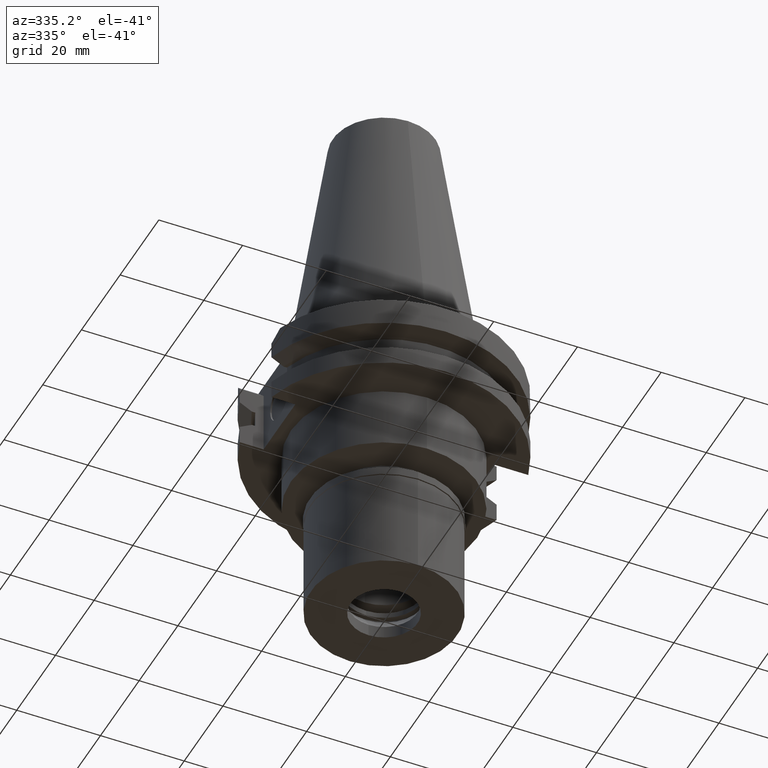
[diagram: clean part render]
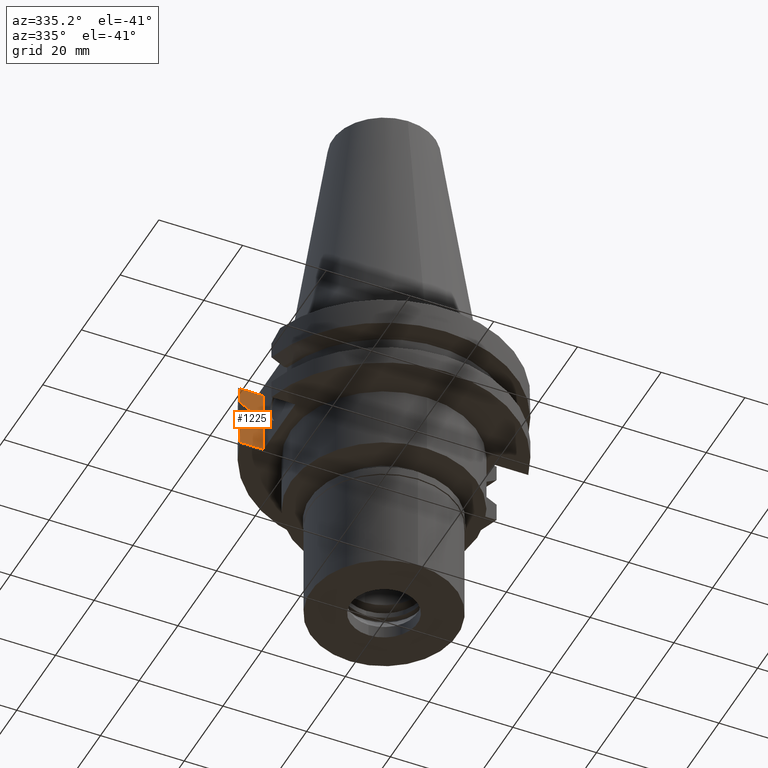
[diagram: same view with one face highlighted and labeled with its STEP entity id]
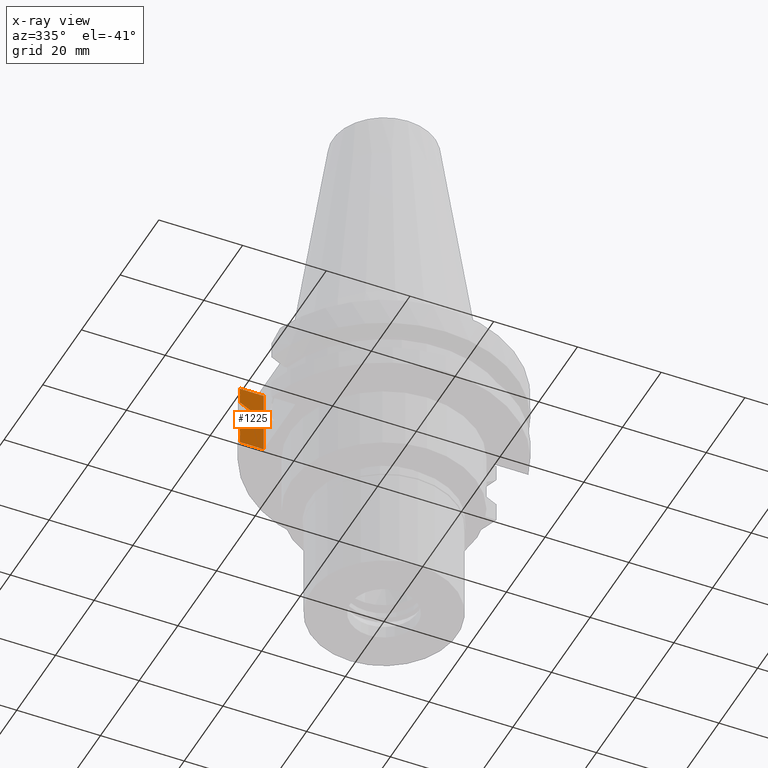
[diagram: x-ray of the same camera — body ghosted, the highlighted face saturated]
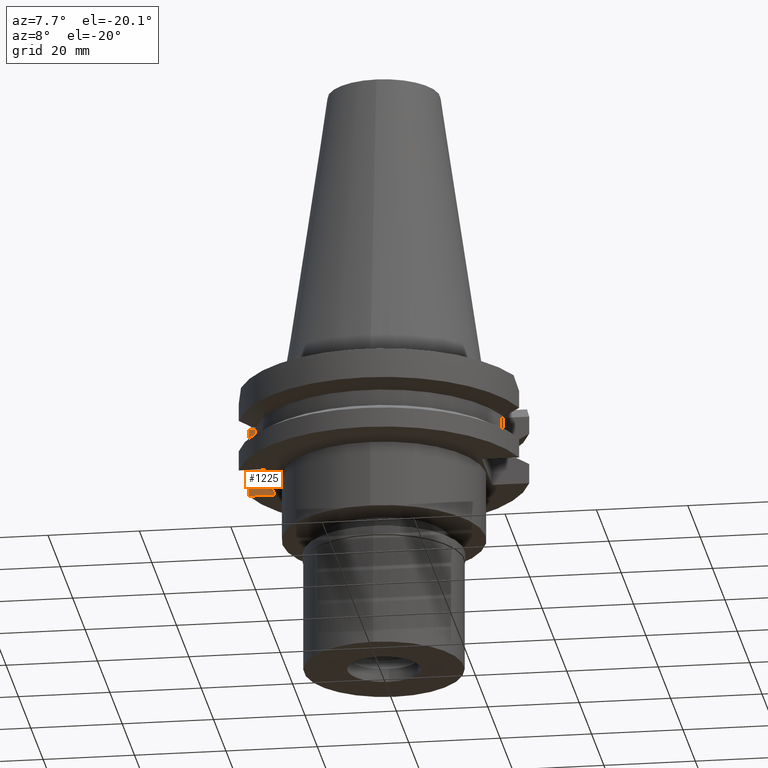
[diagram: same view with one face highlighted and labeled with its STEP entity id]
A machine part, auxiliary view. The second image highlights one B-rep face of the part: STEP entity #1225.
The next image is the same camera in x-ray: the body ghosted, the highlighted face saturated — about 0% of this face is hidden behind the body in this view.
A second angle (auxiliary view) of the same face is appended — the face is thin or edge-on in the first view.
In plain terms, the highlighted planar face has unit normal (0, 1, 0).
Its self-contained STEP definition (entity closure, byte-faithful):
#29 = CARTESIAN_POINT ( 'NONE',  ( -24.98000000000000043, 8.189999999999999503, -3.700000000000000178 ) ) ;
#34 = VECTOR ( 'NONE', #1841, 1000.000000000000114 ) ;
#68 = CARTESIAN_POINT ( 'NONE',  ( -27.78617712593000277, 8.189999354991000402, -9.207500000000999663 ) ) ;
#122 = CARTESIAN_POINT ( 'NONE',  ( -27.78617712540000184, 8.189999355013000581, -13.04749999999999943 ) ) ;
#196 = CARTESIAN_POINT ( 'NONE',  ( -27.78617712593000277, 8.189999354991000402, -9.207500000000999663 ) ) ;
#200 = DIRECTION ( 'NONE',  ( 0.0000000000000000000, 0.0000000000000000000, -1.000000000000000000 ) ) ;
#244 = CARTESIAN_POINT ( 'NONE',  ( -27.78617712540000184, 8.189999355013000581, -13.04749999999999943 ) ) ;
#284 = VERTEX_POINT ( 'NONE', #2751 ) ;
#299 = CARTESIAN_POINT ( 'NONE',  ( -30.67550162588999640, 8.189999999999999503, -19.05000000000000071 ) ) ;
#331 = FACE_OUTER_BOUND ( 'NONE', #2786, .T. ) ;
#371 = CARTESIAN_POINT ( 'NONE',  ( -30.67550162588999640, 8.189999999999999503, -3.700000000000000178 ) ) ;
#395 = CARTESIAN_POINT ( 'NONE',  ( -30.67550162588999640, 8.190000000000997815, -14.65366676908000088 ) ) ;
#419 = CARTESIAN_POINT ( 'NONE',  ( -30.67550166027999836, 8.189999871196000925, -7.601334381923999572 ) ) ;
#454 = DIRECTION ( 'NONE',  ( 1.000000000000000000, 0.0000000000000000000, 0.0000000000000000000 ) ) ;
#480 = CARTESIAN_POINT ( 'NONE',  ( -26.96361066326000255, 8.189999999999999503, -13.04749999999999943 ) ) ;
#537 = EDGE_CURVE ( 'NONE', #1629, #837, #1192, .T. ) ;
#540 = CARTESIAN_POINT ( 'NONE',  ( -30.67550166027999836, 8.189999871196000925, -7.601334381923999572 ) ) ;
#574 = VECTOR ( 'NONE', #2556, 1000.000000000000000 ) ;
#721 = CARTESIAN_POINT ( 'NONE',  ( -30.67550162588999640, 8.190000000000997815, -14.65366676908000088 ) ) ;
#786 = VECTOR ( 'NONE', #2436, 1000.000000000000000 ) ;
#812 = ORIENTED_EDGE ( 'NONE', *, *, #537, .T. ) ;
#815 = EDGE_CURVE ( 'NONE', #284, #2611, #1625, .T. ) ;
#837 = VERTEX_POINT ( 'NONE', #244 ) ;
#847 = EDGE_CURVE ( 'NONE', #2611, #2391, #1373, .T. ) ;
#890 = ORIENTED_EDGE ( 'NONE', *, *, #847, .F. ) ;
#908 = CARTESIAN_POINT ( 'NONE',  ( -28.73056052340999855, 8.190000283830000782, -8.684028978076000271 ) ) ;
#981 = DIRECTION ( 'NONE',  ( -0.9999999999996925792, -7.841158561564943783E-07, 4.124702038574971843E-13 ) ) ;
#1104 = CARTESIAN_POINT ( 'NONE',  ( -30.67550166027999836, 8.189999871200001280, -14.65366561806999890 ) ) ;
#1192 = LINE ( 'NONE', #480, #1655 ) ;
#1194 = LINE ( 'NONE', #2135, #34 ) ;
#1212 = EDGE_CURVE ( 'NONE', #284, #2920, #2495, .T. ) ;
#1225 = ADVANCED_FACE ( 'NONE', ( #331 ), #3032, .F. ) ;
#1244 = EDGE_CURVE ( 'NONE', #2537, #3052, #1295, .T. ) ;
#1295 = LINE ( 'NONE', #1104, #2447 ) ;
#1340 = DIRECTION ( 'NONE',  ( -0.0000000000000000000, 1.000000000000000000, 0.0000000000000000000 ) ) ;
#1344 = LINE ( 'NONE', #1594, #574 ) ;
#1373 = LINE ( 'NONE', #2157, #1701 ) ;
#1394 = EDGE_CURVE ( 'NONE', #2698, #2885, #1194, .T. ) ;
#1400 = ORIENTED_EDGE ( 'NONE', *, *, #1212, .T. ) ;
#1428 = CARTESIAN_POINT ( 'NONE',  ( -30.34643496572000032, 8.189999871196000925, -7.784891506808000017 ) ) ;
#1475 = LINE ( 'NONE', #2190, #786 ) ;
#1537 = VECTOR ( 'NONE', #3021, 1000.000000000000114 ) ;
#1585 = B_SPLINE_CURVE_WITH_KNOTS ( 'NONE', 3,
 ( #721, #1687, #1805, #122 ),
 .UNSPECIFIED., .F., .F.,
 ( 4, 4 ),
 ( 0.0000000000000000000, 1.000000000000000000 ),
 .UNSPECIFIED. ) ;
#1594 = CARTESIAN_POINT ( 'NONE',  ( -24.98000000000000043, 8.189999999999999503, -19.05000000000000071 ) ) ;
#1625 = LINE ( 'NONE', #1678, #1901 ) ;
#1629 = VERTEX_POINT ( 'NONE', #1838 ) ;
#1655 = VECTOR ( 'NONE', #981, 1000.000000000000114 ) ;
#1678 = CARTESIAN_POINT ( 'NONE',  ( -30.67550162588999640, 8.189999999999999503, -3.700000000000000178 ) ) ;
#1687 = CARTESIAN_POINT ( 'NONE',  ( -29.66936063103016608, 8.189999742493125012, -14.09242990279802932 ) ) ;
#1701 = VECTOR ( 'NONE', #200, 1000.000000000000000 ) ;
#1741 = AXIS2_PLACEMENT_3D ( 'NONE', #2284, #1340, #1810 ) ;
#1764 = ORIENTED_EDGE ( 'NONE', *, *, #815, .F. ) ;
#1805 = CARTESIAN_POINT ( 'NONE',  ( -28.70626002247515274, 8.189998708598336563, -13.55704239397416089 ) ) ;
#1810 = DIRECTION ( 'NONE',  ( 1.000000000000000000, 0.0000000000000000000, 0.0000000000000000000 ) ) ;
#1813 = ORIENTED_EDGE ( 'NONE', *, *, #2218, .T. ) ;
#1825 = EDGE_CURVE ( 'NONE', #2698, #1629, #1475, .T. ) ;
#1838 = CARTESIAN_POINT ( 'NONE',  ( -26.96361066326000255, 8.189999999999999503, -13.04749999999999943 ) ) ;
#1841 = DIRECTION ( 'NONE',  ( -0.9999999999996924682, -7.841421436145935778E-07, -1.025776684332991404E-12 ) ) ;
#1892 = CARTESIAN_POINT ( 'NONE',  ( -28.09918438189000156, 8.189999354991000402, -9.034158176830999309 ) ) ;
#1901 = VECTOR ( 'NONE', #454, 1000.000000000000000 ) ;
#1970 = ORIENTED_EDGE ( 'NONE', *, *, #1244, .T. ) ;
#2022 = ORIENTED_EDGE ( 'NONE', *, *, #1394, .F. ) ;
#2059 = ORIENTED_EDGE ( 'NONE', *, *, #2073, .F. ) ;
#2073 = EDGE_CURVE ( 'NONE', #2391, #3052, #1344, .T. ) ;
#2109 = CARTESIAN_POINT ( 'NONE',  ( -29.69365969333999900, 8.189999974106999758, -8.148623101324998785 ) ) ;
#2126 = ORIENTED_EDGE ( 'NONE', *, *, #2376, .F. ) ;
#2135 = CARTESIAN_POINT ( 'NONE',  ( -26.96361066326000255, 8.189999999999999503, -9.207499999999999574 ) ) ;
#2157 = CARTESIAN_POINT ( 'NONE',  ( -24.98000000000000043, 8.189999999999999503, -3.700000000000000178 ) ) ;
#2190 = CARTESIAN_POINT ( 'NONE',  ( -26.96361066326000255, 8.189999999999999503, -9.207499999999999574 ) ) ;
#2218 = EDGE_CURVE ( 'NONE', #2920, #2885, #2720, .T. ) ;
#2270 = DIRECTION ( 'NONE',  ( 7.822157260133996641E-09, 2.929718790436998482E-08, -0.9999999999999995559 ) ) ;
#2284 = CARTESIAN_POINT ( 'NONE',  ( -24.98000000000000043, 8.189999999999999503, -19.05000000000000071 ) ) ;
#2376 = EDGE_CURVE ( 'NONE', #2537, #837, #1585, .T. ) ;
#2391 = VERTEX_POINT ( 'NONE', #3059 ) ;
#2414 = CARTESIAN_POINT ( 'NONE',  ( -26.96361066326000255, 8.189999999999999503, -9.207499999999999574 ) ) ;
#2436 = DIRECTION ( 'NONE',  ( 0.0000000000000000000, 0.0000000000000000000, -1.000000000000000000 ) ) ;
#2447 = VECTOR ( 'NONE', #2270, 1000.000000000000000 ) ;
#2495 = LINE ( 'NONE', #371, #1537 ) ;
#2537 = VERTEX_POINT ( 'NONE', #395 ) ;
#2556 = DIRECTION ( 'NONE',  ( -1.000000000000000000, 0.0000000000000000000, 0.0000000000000000000 ) ) ;
#2611 = VERTEX_POINT ( 'NONE', #29 ) ;
#2698 = VERTEX_POINT ( 'NONE', #2414 ) ;
#2720 = B_SPLINE_CURVE_WITH_KNOTS ( 'NONE', 3,
 ( #419, #1428, #2109, #908, #1892, #196 ),
 .UNSPECIFIED., .F., .F.,
 ( 4, 1, 1, 4 ),
 ( 0.0000000000000000000, 0.3333333333333000081, 0.6666666666667000474, 1.000000000000000000 ),
 .UNSPECIFIED. ) ;
#2751 = CARTESIAN_POINT ( 'NONE',  ( -30.67550162588999640, 8.189999999999999503, -3.700000000000000178 ) ) ;
#2786 = EDGE_LOOP ( 'NONE', ( #890, #1764, #1400, #1813, #2022, #2822, #812, #2126, #1970, #2059 ) ) ;
#2822 = ORIENTED_EDGE ( 'NONE', *, *, #1825, .T. ) ;
#2885 = VERTEX_POINT ( 'NONE', #68 ) ;
#2920 = VERTEX_POINT ( 'NONE', #540 ) ;
#3021 = DIRECTION ( 'NONE',  ( -8.814823009850986240E-09, -3.301531502545998331E-08, -0.9999999999999994449 ) ) ;
#3032 = PLANE ( 'NONE',  #1741 ) ;
#3052 = VERTEX_POINT ( 'NONE', #299 ) ;
#3059 = CARTESIAN_POINT ( 'NONE',  ( -24.98000000000000043, 8.189999999999999503, -19.05000000000000071 ) ) ;